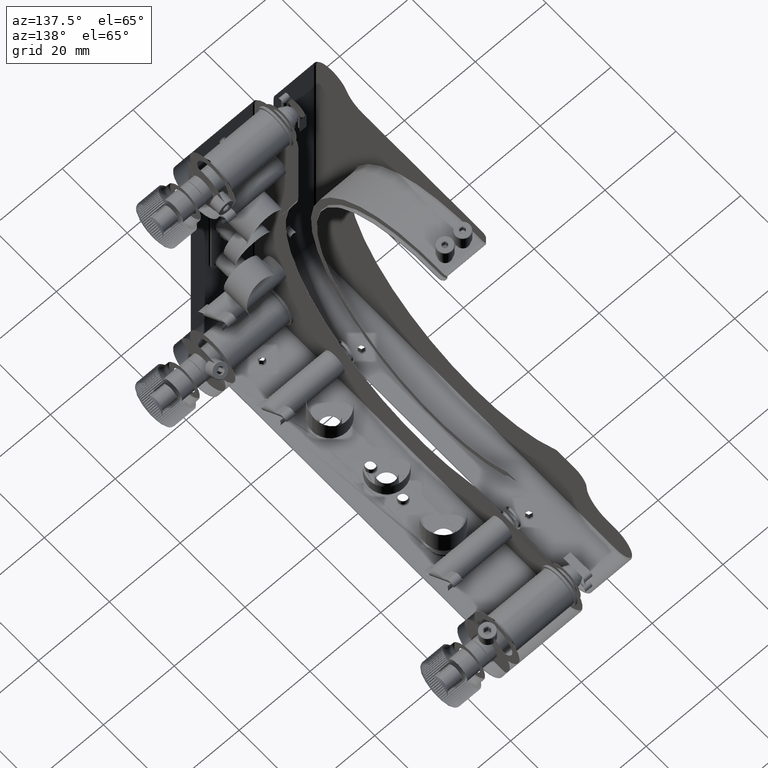
[diagram: clean part render]
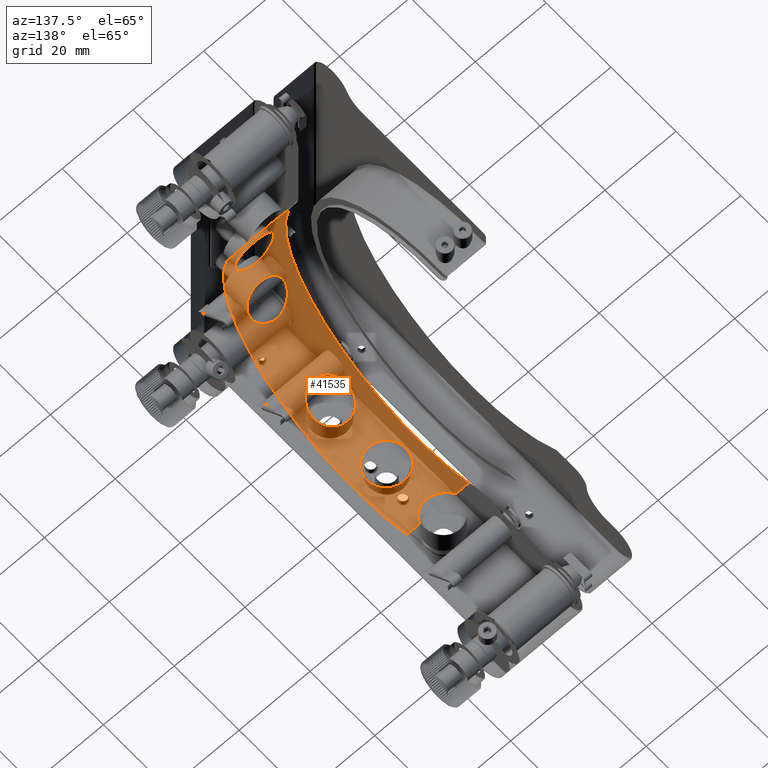
[diagram: same view with one face highlighted and labeled with its STEP entity id]
A machine part, auxiliary view. The second image highlights one B-rep face of the part: STEP entity #41535.
In plain terms, the highlighted cylindrical surface (partial cylindrical patch) has radius 40.75 mm, axis along (1, 0, 0).
Its self-contained STEP definition (entity closure, byte-faithful):
#3 = CARTESIAN_POINT ( 'NONE',  ( 1.930897542324980565, -38.79155880988962224, 12.48142907211062536 ) ) ;
#55 = CARTESIAN_POINT ( 'NONE',  ( 3.339438830450079720, 4.331555835994589820, -40.51960832178558292 ) ) ;
#132 = CARTESIAN_POINT ( 'NONE',  ( 4.614821647508463798, 14.78108813073963823, -37.97769513099697747 ) ) ;
#158 = CARTESIAN_POINT ( 'NONE',  ( 0.006123873095216170181, -40.38615388331849942, -5.433329965400402806 ) ) ;
#271 = CARTESIAN_POINT ( 'NONE',  ( -2.196415316527017936, -38.75539192368719910, 12.59366841985817942 ) ) ;
#323 = CARTESIAN_POINT ( 'NONE',  ( -1.241638347569308687, 5.296042663827035923, -40.40440117247214857 ) ) ;
#537 = CARTESIAN_POINT ( 'NONE',  ( -1.938796018661389509, -38.79057387053479999, 12.48449408876467182 ) ) ;
#672 = CARTESIAN_POINT ( 'NONE',  ( -1.395904647949272714, 12.30467445785584246, -38.84798698863874478 ) ) ;
#872 = CARTESIAN_POINT ( 'NONE',  ( -0.3583316744100871198, 5.433242218426096670, -40.38616568831872655 ) ) ;
#973 = CARTESIAN_POINT ( 'NONE',  ( -5.463039051178869343, -40.74508808486818623, -0.7230385806711530083 ) ) ;
#1408 = CARTESIAN_POINT ( 'NONE',  ( -4.121890411068113380, 3.601718521415357976, -40.59075216363608263 ) ) ;
#1585 = VERTEX_POINT ( 'NONE', #46623 ) ;
#1694 = CARTESIAN_POINT ( 'NONE',  ( -5.499998297477961096, -3.826998617230967584E-13, -40.75000000000000000 ) ) ;
#1723 = EDGE_LOOP ( 'NONE', ( #22780, #33017, #52060 ) ) ;
#1779 = CARTESIAN_POINT ( 'NONE',  ( 4.000722858813950289, -40.57888546541018115, 3.732581761779501850 ) ) ;
#2050 = CARTESIAN_POINT ( 'NONE',  ( -3.629126358851015421, -40.54419919650319315, 4.098008309915936564 ) ) ;
#2095 = CARTESIAN_POINT ( 'NONE',  ( -2.456502405976780157, -34.33236793493833261, -21.95174824899309129 ) ) ;
#2264 = ORIENTED_EDGE ( 'NONE', *, *, #30076, .T. ) ;
#2310 = CARTESIAN_POINT ( 'NONE',  ( -1.377311732215876106, -22.36281105411774561, -34.06568695109816503 ) ) ;
#2367 = CARTESIAN_POINT ( 'NONE',  ( -4.241903772861166821, -35.25976797914545813, -20.43062876499849523 ) ) ;
#2577 = CARTESIAN_POINT ( 'NONE',  ( 2.696154630790986939, -12.84261495296546407, -38.67394899576145662 ) ) ;
#2581 = CARTESIAN_POINT ( 'NONE',  ( 1.775557841394569403, -40.42291878982166509, -5.154473764669673663 ) ) ;
#2633 = CARTESIAN_POINT ( 'NONE',  ( 5.205741329893924352, -36.48463985630233708, -18.15379854000222082 ) ) ;
#2842 = CARTESIAN_POINT ( 'NONE',  ( -3.850394377802632828, -20.88564911169115490, -34.99100849808924352 ) ) ;
#2846 = CARTESIAN_POINT ( 'NONE',  ( 2.431487199460516724, -40.45721956630710991, -4.876779408126423299 ) ) ;
#2897 = CARTESIAN_POINT ( 'NONE',  ( 2.206056306756949414, -34.25972767963434507, -22.06445098705114916 ) ) ;
#3102 = CARTESIAN_POINT ( 'NONE',  ( -3.242500596238207411, -21.44832223115795244, -34.64942585980369927 ) ) ;
#3107 = CARTESIAN_POINT ( 'NONE',  ( 5.463039320360151940, -40.74508783613448770, 0.7230734162997934922 ) ) ;
#3159 = CARTESIAN_POINT ( 'NONE',  ( 4.680216337552370653, -37.91939278581921258, -14.92584298432247536 ) ) ;
#3369 = CARTESIAN_POINT ( 'NONE',  ( 0.2277920263223809916, -22.53961391077723064, -33.94890732302209102 ) ) ;
#3500 = CARTESIAN_POINT ( 'NONE',  ( -5.213111478127919085, -1.767983061123587385, -40.71295341165660631 ) ) ;
#3602 = CARTESIAN_POINT ( 'NONE',  ( 4.926787635636562968, 2.421736151843803420, -40.67828192795841602 ) ) ;
#3805 = CARTESIAN_POINT ( 'NONE',  ( 0.2797249183375758452, -38.90423023780286371, 12.12531936271253308 ) ) ;
#3942 = CARTESIAN_POINT ( 'NONE',  ( -4.995400562359823660, -36.05198119309647353, -18.99822215507832368 ) ) ;
#4027 = CARTESIAN_POINT ( 'NONE',  ( 0.8925483972004268907, -5.364198963368748352, -40.39540884763528794 ) ) ;
#4076 = CARTESIAN_POINT ( 'NONE',  ( -3.584629274975733360, -38.44443355499674908, 13.51411000818829145 ) ) ;
#4080 = VERTEX_POINT ( 'NONE', #47946 ) ;
#4125 = CARTESIAN_POINT ( 'NONE',  ( 5.500000656810635213, 0.3614219306665636400, -40.75000000000000711 ) ) ;
#4288 = EDGE_CURVE ( 'NONE', #17514, #41856, #12359, .T. ) ;
#4401 = CARTESIAN_POINT ( 'NONE',  ( -4.763334729731109718, 2.739575994951924276, -40.65888489046599830 ) ) ;
#4475 = CARTESIAN_POINT ( 'NONE',  ( -4.831024549768033083, 15.26249608576024386, -37.78472486095368055 ) ) ;
#4555 = CARTESIAN_POINT ( 'NONE',  ( 4.843472721472535270, -15.28882858863674343, -37.77357166424441459 ) ) ;
#4561 = CARTESIAN_POINT ( 'NONE',  ( 0.3595943720963981627, -5.424590790737092050, -40.38733241164318599 ) ) ;
#4778 = CARTESIAN_POINT ( 'NONE',  ( -5.011721531787838302, 15.76172518916092713, -37.57832512315272311 ) ) ;
#4994 = CARTESIAN_POINT ( 'NONE',  ( 5.011721531787839190, 15.76172518916092713, -37.57832512315272311 ) ) ;
#5034 = CARTESIAN_POINT ( 'NONE',  ( -3.341468954278050241, -40.51974638939110207, -4.330364573712174092 ) ) ;
#5038 = VERTEX_POINT ( 'NONE', #42139 ) ;
#5104 = CARTESIAN_POINT ( 'NONE',  ( 0.1785928338842767693, -5.433369985101750288, -40.38614849928588058 ) ) ;
#5151 = EDGE_CURVE ( 'NONE', #4080, #27292, #16479, .T. ) ;
#5303 = CARTESIAN_POINT ( 'NONE',  ( -4.000820371889020066, -40.57889467405702533, -3.732481677172799550 ) ) ;
#5306 = ORIENTED_EDGE ( 'NONE', *, *, #11054, .T. ) ;
#5307 = VERTEX_POINT ( 'NONE', #158 ) ;
#5562 = CARTESIAN_POINT ( 'NONE',  ( -5.218926350592871799, -40.71367826604164719, 1.751930019738067834 ) ) ;
#5835 = CARTESIAN_POINT ( 'NONE',  ( 0.006123873095216264724, -40.38615388331849942, -5.433329965400402806 ) ) ;
#6113 = CARTESIAN_POINT ( 'NONE',  ( -5.500314324973166080, -40.75004152345506014, 0.1697985289982003876 ) ) ;
#6157 = CARTESIAN_POINT ( 'NONE',  ( -1.469225657169255017, -34.08245734878160960, -22.33725395065035713 ) ) ;
#6214 = DIRECTION ( 'NONE',  ( 1.000000000000000000, 0.000000000000000000, 0.000000000000000000 ) ) ;
#6421 = CARTESIAN_POINT ( 'NONE',  ( 0.3149861472409103413, -33.94572647338952720, -22.54440438091026522 ) ) ;
#6544 = CARTESIAN_POINT ( 'NONE',  ( -5.499996602745524932, 0.000000000000000000, 0.000000000000000000 ) ) ;
#6639 = CARTESIAN_POINT ( 'NONE',  ( -1.480561840863057421, -12.31818982271674479, -38.84367554310399129 ) ) ;
#6694 = CARTESIAN_POINT ( 'NONE',  ( -4.253696983977738988, -38.18033209252557469, -14.24504721001471630 ) ) ;
#6902 = CARTESIAN_POINT ( 'NONE',  ( -3.635837687273550944, -13.54867592981782565, -38.43266084001547966 ) ) ;
#6908 = CARTESIAN_POINT ( 'NONE',  ( 3.629013672097569199, -40.54418884936116285, -4.098112353221560866 ) ) ;
#6963 = CARTESIAN_POINT ( 'NONE',  ( -2.696154630790662310, -38.67394899576130030, -12.84261495296588329 ) ) ;
#7071 = CARTESIAN_POINT ( 'NONE',  ( -8.749999999999987566, 0.000000000000000000, 0.000000000000000000 ) ) ;
#7166 = CARTESIAN_POINT ( 'NONE',  ( 1.717025850105045937, -12.40234493135632299, -38.81684397214100812 ) ) ;
#7224 = CARTESIAN_POINT ( 'NONE',  ( -4.039596001790020097, -38.27985037995065198, -13.97447870109688495 ) ) ;
#7428 = CARTESIAN_POINT ( 'NONE',  ( 1.371683080854103842, -12.29733202772297140, -38.85024016339947650 ) ) ;
#7432 = ORIENTED_EDGE ( 'NONE', *, *, #33906, .T. ) ;
#7462 = CARTESIAN_POINT ( 'NONE',  ( 5.011721531787826756, -37.57832512315272311, 15.76172518916094134 ) ) ;
#7479 = VECTOR ( 'NONE', #11718, 1000.000000000000000 ) ;
#7640 = LINE ( 'NONE', #49306, #7479 ) ;
#7668 = CARTESIAN_POINT ( 'NONE',  ( 5.319928757752005133, 1.424580756677927829, -40.72660235774582560 ) ) ;
#8004 = CARTESIAN_POINT ( 'NONE',  ( 3.967156427153303522, 13.90530133532940305, -38.30467641752975538 ) ) ;
#8133 = CARTESIAN_POINT ( 'NONE',  ( 0.5662669804062991918, -38.89709466596625731, 12.14828131422318691 ) ) ;
#8216 = CIRCLE ( 'NONE', #14292, 40.75000000000000000 ) ;
#8262 = CARTESIAN_POINT ( 'NONE',  ( 1.124839795127098085, 12.23844421147758510, -38.86882048262084766 ) ) ;
#8621 = CARTESIAN_POINT ( 'NONE',  ( 5.261001348601960892, -17.39485508263600266, -36.85080076001189298 ) ) ;
#8627 = CARTESIAN_POINT ( 'NONE',  ( 1.761236579560047755, -5.159529825564074024, -40.42227644108631068 ) ) ;
#8679 = CARTESIAN_POINT ( 'NONE',  ( 3.580623310212754262, -38.44574904499517487, 13.51037274324250070 ) ) ;
#8728 = CARTESIAN_POINT ( 'NONE',  ( -4.000726051704313946, 3.732585665438623135, -40.57888533190947555 ) ) ;
#8804 = CARTESIAN_POINT ( 'NONE',  ( -3.580623310212589505, 13.51037274324234794, -38.44574904499525303 ) ) ;
#8888 = CARTESIAN_POINT ( 'NONE',  ( 4.533334339831691651, -14.68065271886060685, -38.01401179730947177 ) ) ;
#9070 = CARTESIAN_POINT ( 'NONE',  ( 4.144096366179196522, 14.11745894000130441, -38.22715921338239298 ) ) ;
#9094 = CARTESIAN_POINT ( 'NONE',  ( -5.456141163097250057, -40.74424153513099611, 0.7078987838410566447 ) ) ;
#9273 = CARTESIAN_POINT ( 'NONE',  ( -1.928958507810110357, 5.091256213105920914, -40.43075774542476353 ) ) ;
#9368 = CARTESIAN_POINT ( 'NONE',  ( -2.739424624468616010, -40.47563517350196349, -4.724919269512259490 ) ) ;
#9638 = CARTESIAN_POINT ( 'NONE',  ( -0.3677366741814773743, -40.38621032067162986, 5.432910464319828492 ) ) ;
#9742 = LINE ( 'NONE', #21948, #53336 ) ;
#9905 = CARTESIAN_POINT ( 'NONE',  ( 4.351315916142229234, -40.61411531252756646, 3.327919390608630845 ) ) ;
#9953 = CARTESIAN_POINT ( 'NONE',  ( -4.619548268556921577, -37.95561411499282656, -14.83106584895282154 ) ) ;
#10167 = CARTESIAN_POINT ( 'NONE',  ( -9.000000000000001776, 15.76172518916092358, -37.57832512315271600 ) ) ;
#10232 = CARTESIAN_POINT ( 'NONE',  ( -0.7709097162624632960, -33.98292821134760544, -22.48830090499527046 ) ) ;
#10505 = CARTESIAN_POINT ( 'NONE',  ( -1.808036624273045012, -34.15427825385300764, -22.22728255873273895 ) ) ;
#10639 = AXIS2_PLACEMENT_3D ( 'NONE', #7071, #24398, #32511 ) ;
#10714 = CARTESIAN_POINT ( 'NONE',  ( 2.756598680347667862, -21.78207264107658858, -34.44063816294812597 ) ) ;
#10718 = CARTESIAN_POINT ( 'NONE',  ( 5.499340462843626653, -40.74991295283649606, 0.3686911672014360764 ) ) ;
#10723 = CARTESIAN_POINT ( 'NONE',  ( 5.261001348601959116, -17.39485508263599911, -36.85080076001188587 ) ) ;
#10766 = CARTESIAN_POINT ( 'NONE',  ( 1.377311732215388496, -34.06568695109836398, -22.36281105411744718 ) ) ;
#10982 = CARTESIAN_POINT ( 'NONE',  ( -4.703133273776444412, -19.68865675327059250, -35.67957317613453228 ) ) ;
#10986 = CARTESIAN_POINT ( 'NONE',  ( 5.212209771667665414, -40.71283969846270168, 1.770643016059616270 ) ) ;
#11038 = CARTESIAN_POINT ( 'NONE',  ( 5.247816183913206700, -36.64448800743087276, -17.82909368240089520 ) ) ;
#11054 = EDGE_CURVE ( 'NONE', #1585, #15980, #8216, .T. ) ;
#11118 = CARTESIAN_POINT ( 'NONE',  ( -2.425893985234404582, -4.889052678244928174, -40.45587802180187253 ) ) ;
#11252 = CARTESIAN_POINT ( 'NONE',  ( -1.717844299436062316, -22.25902489347667768, -34.13359278605136637 ) ) ;
#11256 = CARTESIAN_POINT ( 'NONE',  ( 2.269786482426534135, -40.44802549248859691, -4.952206536362248279 ) ) ;
#11312 = CARTESIAN_POINT ( 'NONE',  ( 4.827319914946170520, -37.79802224291981361, -15.23119640393612251 ) ) ;
#11515 = CARTESIAN_POINT ( 'NONE',  ( -4.109683434396426804, -14.05897116549785686, -38.24893944232420040 ) ) ;
#11519 = CARTESIAN_POINT ( 'NONE',  ( 5.429640831829321002, -40.74077617593476219, -0.8844050068614875970 ) ) ;
#11718 = DIRECTION ( 'NONE',  ( -1.000000000000000000, -0.000000000000000000, -0.000000000000000000 ) ) ;
#11773 = CARTESIAN_POINT ( 'NONE',  ( -3.499654124198489757, -21.23546148511702469, -34.78062296213604299 ) ) ;
#11831 = CARTESIAN_POINT ( 'NONE',  ( -5.256921231683577389, -36.69531117311947810, -17.72425798709299372 ) ) ;
#11895 = CARTESIAN_POINT ( 'NONE',  ( 8.750000000000000000, 0.000000000000000000, 0.000000000000000000 ) ) ;
#12006 = CARTESIAN_POINT ( 'NONE',  ( 8.750000000000000000, -37.57832512315271600, 15.76172518916093068 ) ) ;
#12082 = CARTESIAN_POINT ( 'NONE',  ( -4.138384168135939234, 14.11039175501841569, -38.22975776204179255 ) ) ;
#12220 = CARTESIAN_POINT ( 'NONE',  ( 2.193948511226372577, -38.75575553267724871, 12.59254794471602956 ) ) ;
#12275 = CARTESIAN_POINT ( 'NONE',  ( 3.617751395522072144, 4.108109355585617628, -40.54318872123957362 ) ) ;
#12345 = CARTESIAN_POINT ( 'NONE',  ( -3.369227464967950780, 13.32610340693979722, -38.50983938671728879 ) ) ;
#12359 = CIRCLE ( 'NONE', #10639, 40.75000000000000000 ) ;
#12524 = CARTESIAN_POINT ( 'NONE',  ( 2.257980537961369993, 4.957509279082303877, -40.44737590031423480 ) ) ;
#12606 = CARTESIAN_POINT ( 'NONE',  ( -5.261001348601495486, -36.85080076001185034, -17.39485508263608793 ) ) ;
#12870 = CARTESIAN_POINT ( 'NONE',  ( -3.964526606942992082, 13.90225871100374810, -38.30578277524712405 ) ) ;
#12956 = CARTESIAN_POINT ( 'NONE',  ( 5.269161582437790869, -16.73604927372215911, -37.16177993379661615 ) ) ;
#12961 = CARTESIAN_POINT ( 'NONE',  ( -1.764370457714002915, -5.158295482916063435, -40.42243053450017953 ) ) ;
#13139 = CARTESIAN_POINT ( 'NONE',  ( 0.2872092080756378785, 12.12571872543567864, -38.90410576578472046 ) ) ;
#13422 = CARTESIAN_POINT ( 'NONE',  ( -1.416604030705982398, -40.40889437748592172, -5.261991032751218711 ) ) ;
#13494 = CARTESIAN_POINT ( 'NONE',  ( 2.743166665434368490, -4.722498537363804871, -40.47590699085692023 ) ) ;
#13553 = ORIENTED_EDGE ( 'NONE', *, *, #33558, .T. ) ;
#13576 = ORIENTED_EDGE ( 'NONE', *, *, #4288, .F. ) ;
#13602 = CARTESIAN_POINT ( 'NONE',  ( 0.7179445416572157734, 5.398397788207046410, -40.39089730829572744 ) ) ;
#13698 = CARTESIAN_POINT ( 'NONE',  ( -4.121752881803235624, -40.59073942322513773, -3.601845174273287320 ) ) ;
#13877 = CARTESIAN_POINT ( 'NONE',  ( -4.933735927817450850, 2.427550588920688313, -40.67896176066003733 ) ) ;
#13979 = CARTESIAN_POINT ( 'NONE',  ( 4.763582895831884656, -40.65891045771595458, 2.739297094972142688 ) ) ;
#14246 = CARTESIAN_POINT ( 'NONE',  ( -2.431641659203667150, -40.45722875026937260, 4.876703039565683184 ) ) ;
#14292 = AXIS2_PLACEMENT_3D ( 'NONE', #11895, #28412, #47901 ) ;
#14525 = CARTESIAN_POINT ( 'NONE',  ( 3.352568481008634471, -40.52065799966011639, -4.321813870385293299 ) ) ;
#14572 = CARTESIAN_POINT ( 'NONE',  ( -3.318245401906849246, -34.68624177405235542, -21.38880261268124627 ) ) ;
#14602 = B_SPLINE_CURVE_WITH_KNOTS ( 'NONE', 3,
 ( #5835, #46180, #42671, #13422, #29950, #30494, #9368, #5034, #42135, #5303, #13698, #38610, #18042, #30760, #42938, #25890, #18581, #973, #34280, #6113, #22650, #9094, #42404, #39156, #5562, #26429, #21840, #50774, #38348, #2050, #30227, #25624, #51320, #14246, #51053, #22377, #35098, #46719, #9638, #34559, #50496, #21573, #34015, #38087, #46989, #26163, #38888, #1779, #17500, #9905, #22099, #13979, #36440, #10986, #31561, #3107, #10718, #48589, #19118, #31300, #11519, #23451, #36174, #44010, #47792, #32102, #39692, #6908, #14525, #40218, #15057, #2846, #11256, #2581, #35644, #19652, #31033, #35903 ),
 .UNSPECIFIED., .T., .F.,
 ( 4, 2, 2, 2, 2, 2, 2, 2, 2, 2, 2, 2, 2, 2, 2, 2, 2, 2, 2, 2, 2, 2, 2, 2, 2, 2, 2, 2, 2, 2, 2, 2, 2, 2, 2, 2, 2, 2, 4 ),
 ( 0.000000000000000000, 0.001074860242416511309, 0.002149720484833022617, 0.003224580727249533492, 0.004299440969666045234, 0.004836871090874301539, 0.005374301212082558711, 0.006449161454499071321, 0.007524021696915584798, 0.008598881939332097407, 0.009136312060540356314, 0.009673742181748613486, 0.01074860242416512783, 0.01182346266658164391, 0.01289832290899815825, 0.01397318315141467260, 0.01451061327262292804, 0.01504804339383118347, 0.01612290363624769782, 0.01719776387866421216, 0.01827262412108072304, 0.01934748436349723391, 0.02042234460591374479, 0.02149720484833025566, 0.02203463496953851283, 0.02257206509074677001, 0.02364692533316328088, 0.02472178557557978829, 0.02579664581799629222, 0.02633407593920454592, 0.02687150606041280310, 0.02794636630282931050, 0.02902122654524581791, 0.03009608678766232531, 0.03117094703007883272, 0.03170837715128708989, 0.03224580727249534706, 0.03332066751491185447, 0.03439552775732836881 ),
 .UNSPECIFIED. ) ;
#14791 = CARTESIAN_POINT ( 'NONE',  ( -0.3149861472412423535, -22.54440438091073773, -33.94572647338915061 ) ) ;
#14845 = CARTESIAN_POINT ( 'NONE',  ( 5.248963195070421861, -37.10755870821567726, -16.84395245975408173 ) ) ;
#15052 = CARTESIAN_POINT ( 'NONE',  ( -0.6722249016114627551, -22.51097255405258579, -33.96800736007805455 ) ) ;
#15057 = CARTESIAN_POINT ( 'NONE',  ( 2.748664650791895259, -40.47703122138305787, -4.709515467125152455 ) ) ;
#15104 = CARTESIAN_POINT ( 'NONE',  ( 3.635837687273444363, -38.43266084001527361, -13.54867592981837809 ) ) ;
#15174 = CARTESIAN_POINT ( 'NONE',  ( -3.189964028402764828, -4.429658049590132762, -40.50864559972226431 ) ) ;
#15312 = CARTESIAN_POINT ( 'NONE',  ( 4.241903772861450150, -20.43062876499887537, -35.25976797914523786 ) ) ;
#15373 = CARTESIAN_POINT ( 'NONE',  ( 1.480561840862956835, -38.84367554310386339, -12.31818982271719598 ) ) ;
#15589 = CARTESIAN_POINT ( 'NONE',  ( 0.6687740283198418956, -12.15036106530243565, -38.89648392008152200 ) ) ;
#15647 = CARTESIAN_POINT ( 'NONE',  ( -0.4110952138729713767, -33.95623809182475128, -22.52858136646210951 ) ) ;
#15846 = CARTESIAN_POINT ( 'NONE',  ( 1.469225657169102917, -22.33725395065080122, -34.08245734878131827 ) ) ;
#15905 = CARTESIAN_POINT ( 'NONE',  ( -4.598969839645304702, -35.57155766007274877, -19.88280954272997647 ) ) ;
#15976 = CARTESIAN_POINT ( 'NONE',  ( -4.359028773501672838, -3.332681002284666683, -40.61459026927117577 ) ) ;
#15980 = VERTEX_POINT ( 'NONE', #12006 ) ;
#16021 = CARTESIAN_POINT ( 'NONE',  ( 1.122968504476722140, -38.86894683602120892, 12.23804249874962835 ) ) ;
#16155 = CIRCLE ( 'NONE', #49829, 40.75000000000000000 ) ;
#16292 = CARTESIAN_POINT ( 'NONE',  ( -4.850394414881195715, -37.79020639065076637, 15.25656835753295404 ) ) ;
#16418 = CARTESIAN_POINT ( 'NONE',  ( -1.930897542324826022, 12.48142907211046548, -38.79155880988969329 ) ) ;
#16479 = B_SPLINE_CURVE_WITH_KNOTS ( 'NONE', 3,
 ( #33107, #4125, #20666, #7668, #24213, #40713, #3602, #36662, #53139, #37180, #49336, #12275, #55, #16611, #49588, #23686, #12524, #29036, #45537, #13602, #38514, #872, #42577, #323, #45813, #21745, #9273, #25526, #33371, #25263, #17407, #8728, #1408, #33920, #24988, #4401, #13877, #29311, #41497, #50405, #30132, #20936 ),
 .UNSPECIFIED., .F., .F.,
 ( 4, 2, 2, 2, 2, 2, 2, 2, 2, 2, 2, 2, 2, 2, 2, 2, 2, 2, 2, 2, 4 ),
 ( 4.914551236149632764E-18, 0.001081859580082004252, 0.002163719160164002866, 0.002704648950205002823, 0.003245578740246003215, 0.004327438320328003130, 0.005409297900410002177, 0.005950227690451002568, 0.006491157480492001225, 0.007573017060574002007, 0.008654876640656001055, 0.009736736220738000103, 0.01027766601077900049, 0.01081859580081999915, 0.01190045538090199993, 0.01298231496098399725, 0.01352324475102499764, 0.01406417454106599629, 0.01514603412114799881, 0.01622789370122999439, 0.01730975328131199517 ),
 .UNSPECIFIED. ) ;
#16562 = CARTESIAN_POINT ( 'NONE',  ( -1.403209007920019236, -38.84736416280526328, 12.30664501235861152 ) ) ;
#16611 = CARTESIAN_POINT ( 'NONE',  ( 2.893236182564590919, 4.624186633567585858, -40.48689950596054388 ) ) ;
#16687 = CARTESIAN_POINT ( 'NONE',  ( -5.091336230884726533, -36.21578143336105171, -18.68439383591676872 ) ) ;
#16735 = EDGE_CURVE ( 'NONE', #41195, #23528, #41014, .T. ) ;
#16768 = CARTESIAN_POINT ( 'NONE',  ( 4.761806732925205843, -2.742115188085471722, -40.65871131883753264 ) ) ;
#16814 = CARTESIAN_POINT ( 'NONE',  ( -2.931444422004205741, -38.62066899581582646, 13.00142764817423924 ) ) ;
#17216 = CARTESIAN_POINT ( 'NONE',  ( -2.689407202584908507, 12.84993704586428009, -38.67117749132991378 ) ) ;
#17407 = CARTESIAN_POINT ( 'NONE',  ( -3.619774058510268677, 4.105968150468766176, -40.54338475840064149 ) ) ;
#17500 = CARTESIAN_POINT ( 'NONE',  ( 4.121650934172808256, -40.59072993898237058, 3.601951292046362774 ) ) ;
#17514 = VERTEX_POINT ( 'NONE', #22819 ) ;
#17669 = DIRECTION ( 'NONE',  ( -1.000000000000000000, -0.000000000000000000, -0.000000000000000000 ) ) ;
#17973 = FACE_BOUND ( 'NONE', #32691, .T. ) ;
#18042 = CARTESIAN_POINT ( 'NONE',  ( -4.460684768055046767, -40.62572977583717915, -3.183494092382266327 ) ) ;
#18090 = CARTESIAN_POINT ( 'NONE',  ( -5.261001348601495486, -36.85080076001185034, -17.39485508263608793 ) ) ;
#18526 = VERTEX_POINT ( 'NONE', #1694 ) ;
#18581 = CARTESIAN_POINT ( 'NONE',  ( -5.320368056317815508, -40.72665881831637336, -1.422761163815011942 ) ) ;
#18628 = CARTESIAN_POINT ( 'NONE',  ( -2.756598680347605690, -34.44063816294841018, -21.78207264107611962 ) ) ;
#18698 = EDGE_CURVE ( 'NONE', #36702, #48994, #34400, .T. ) ;
#18846 = CARTESIAN_POINT ( 'NONE',  ( 1.197250167810901100, -12.25390032225131165, -38.86393875732265002 ) ) ;
#18905 = CARTESIAN_POINT ( 'NONE',  ( -0.6687740283197041169, -38.89648392008137279, -12.15036106530296145 ) ) ;
#19114 = CARTESIAN_POINT ( 'NONE',  ( -3.371371562498864272, -13.31486612383551993, -38.51395875749832243 ) ) ;
#19118 = CARTESIAN_POINT ( 'NONE',  ( 5.491511865937709125, -40.74887913774765025, -0.3509951321046544392 ) ) ;
#19163 = AXIS2_PLACEMENT_3D ( 'NONE', #26094, #42061, #21230 ) ;
#19170 = CARTESIAN_POINT ( 'NONE',  ( -3.281469672307180563, -38.53877709199544199, -13.24272441797293354 ) ) ;
#19375 = CARTESIAN_POINT ( 'NONE',  ( -5.061936500146739348, -18.78872931715076078, -36.16176153787186820 ) ) ;
#19430 = CARTESIAN_POINT ( 'NONE',  ( -0.2277920263227289632, -33.94890732302235392, -22.53961391077685761 ) ) ;
#19603 = B_SPLINE_CURVE_WITH_KNOTS ( 'NONE', 3,
 ( #8621, #12956, #30016, #4555, #21095, #45981, #8888, #33815, #50298, #36169, #35898, #2577, #52381, #43736, #7166, #7428, #18846, #15589, #19647, #44530, #48832, #6639, #27228, #23711, #35640, #19114, #6902, #11515, #28027, #40214, #39960, #52652, #27765, #23171, #39417, #48582, #19913, #19375, #51855, #10982, #28293, #23445, #23975, #44793, #2842, #11773, #3102, #32097, #31557, #22904, #40482, #27498, #11252, #2310, #35369, #15052, #14791, #3369, #31296, #36435, #52916, #15846, #32350, #47787, #52115, #10714, #39686, #48044, #44006, #15312, #31828, #48320, #44272, #36686, #20963, #49363, #45056 ),
 .UNSPECIFIED., .T., .F.,
 ( 4, 2, 2, 2, 2, 2, 2, 2, 2, 2, 2, 2, 2, 2, 2, 2, 2, 2, 2, 2, 2, 2, 2, 2, 2, 2, 2, 2, 2, 2, 1, 2, 2, 2, 2, 2, 2, 2, 4 ),
 ( 0.000000000000000000, 0.002177300930612093965, 0.002721626163265121034, 0.003265951395918148537, 0.004354601861224193134, 0.005443252326530237731, 0.006531902791836283195, 0.007076228024489307662, 0.007620553257142330394, 0.008709203722448377594, 0.009797854187754424793, 0.01088650465306047026, 0.01197515511836651746, 0.01306380558367256466, 0.01415245604897861186, 0.01524110651428465732, 0.01632975697959070452, 0.01741840744489675172, 0.01850705791020279892, 0.01959570837550884612, 0.02068435884081489332, 0.02122868407346791692, 0.02177300930612094051, 0.02286165977142697731, 0.02340598500408000091, 0.02395031023673302450, 0.02449463546938604810, 0.02503896070203907170, 0.02612761116734512237, 0.02667193639999814597, 0.02721626163265116957, 0.02776058686530419317, 0.02830491209795721677, 0.02939356256326326744, 0.03048221302856931464, 0.03157086349387536878, 0.03265951395918141598, 0.03374816442448747011, 0.03483681488979351731 ),
 .UNSPECIFIED. ) ;
#19647 = CARTESIAN_POINT ( 'NONE',  ( 0.3072807010815132855, -12.11676009649300489, -38.90689708913046019 ) ) ;
#19652 = CARTESIAN_POINT ( 'NONE',  ( 0.7256911202392203331, -40.39100285897499276, -5.397627205203082923 ) ) ;
#19704 = CARTESIAN_POINT ( 'NONE',  ( 4.271502345760787023, -35.28946463742985884, -20.37745033883944146 ) ) ;
#19913 = CARTESIAN_POINT ( 'NONE',  ( -5.205741329894443048, -18.15379854000197568, -36.48463985630241524 ) ) ;
#20045 = CARTESIAN_POINT ( 'NONE',  ( -4.935500413214938042, -2.423892563413497570, -40.67917261259341899 ) ) ;
#20666 = CARTESIAN_POINT ( 'NONE',  ( 5.463074552624623159, 0.7231979287483064622, -40.74509240011733624 ) ) ;
#20936 = CARTESIAN_POINT ( 'NONE',  ( -5.499996602745522267, 0.006038985377659317200, -40.74999955252338424 ) ) ;
#20963 = CARTESIAN_POINT ( 'NONE',  ( 5.221559233749591300, -18.04840650855258488, -36.53689122444139770 ) ) ;
#21095 = CARTESIAN_POINT ( 'NONE',  ( 4.774326642546486532, -15.13473251500882633, -37.83555244424678676 ) ) ;
#21101 = CARTESIAN_POINT ( 'NONE',  ( 5.500000000000041744, -4.987047574736496884E-15, -40.75000000000000000 ) ) ;
#21147 = CARTESIAN_POINT ( 'NONE',  ( 2.689407202585043066, -38.67117749132983562, 12.84993704586446484 ) ) ;
#21230 = DIRECTION ( 'NONE',  ( 0.000000000000000000, 0.000000000000000000, -1.000000000000000000 ) ) ;
#21282 = CARTESIAN_POINT ( 'NONE',  ( -4.931055082370356502, 15.50907030885118942, -37.68429782891042379 ) ) ;
#21373 = CARTESIAN_POINT ( 'NONE',  ( 4.359220331459719766, -3.332083880450631863, -40.61461828980960576 ) ) ;
#21573 = CARTESIAN_POINT ( 'NONE',  ( 1.416326855749925118, -40.40888426725656757, 5.262068322739398951 ) ) ;
#21646 = CARTESIAN_POINT ( 'NONE',  ( 0.7160690695509407400, -5.389995264112789286, -40.39196399815630656 ) ) ;
#21745 = CARTESIAN_POINT ( 'NONE',  ( -1.760792031494769150, 5.150415478049112927, -40.42324060822863174 ) ) ;
#21772 = FACE_OUTER_BOUND ( 'NONE', #30462, .T. ) ;
#21840 = CARTESIAN_POINT ( 'NONE',  ( -4.769807046616441504, -40.65963299660292307, 2.728399215063981309 ) ) ;
#21948 = CARTESIAN_POINT ( 'NONE',  ( -9.000000000000001776, 15.76172518916092358, -37.57832512315271600 ) ) ;
#22005 = LINE ( 'NONE', #43639, #51829 ) ;
#22099 = CARTESIAN_POINT ( 'NONE',  ( 4.460576716351265958, -40.62571702539202079, 3.183657993337826397 ) ) ;
#22377 = CARTESIAN_POINT ( 'NONE',  ( -1.775775033436534533, -40.42292833887381676, 5.154398954598318205 ) ) ;
#22650 = CARTESIAN_POINT ( 'NONE',  ( -5.491503208492173549, -40.74887846624742593, 0.3510594027447591636 ) ) ;
#22694 = CARTESIAN_POINT ( 'NONE',  ( -1.371683080853907111, -38.85024016339933439, -12.29733202772351852 ) ) ;
#22780 = ORIENTED_EDGE ( 'NONE', *, *, #50218, .T. ) ;
#22819 = CARTESIAN_POINT ( 'NONE',  ( -8.749999999999991118, 15.76172518916092713, -37.57832512315271600 ) ) ;
#22904 = CARTESIAN_POINT ( 'NONE',  ( -2.362990295922543282, -21.98953306638463090, -34.30790681367022188 ) ) ;
#22957 = CARTESIAN_POINT ( 'NONE',  ( -3.574238678063648145, -34.82131387496636421, -21.16875008053011697 ) ) ;
#23082 = DIRECTION ( 'NONE',  ( -1.000000000000000000, -0.000000000000000000, -0.000000000000000000 ) ) ;
#23171 = CARTESIAN_POINT ( 'NONE',  ( -5.248963195070825982, -16.84395245975369093, -37.10755870821584779 ) ) ;
#23229 = CARTESIAN_POINT ( 'NONE',  ( -1.888353664834478973, -38.79704726128782255, -12.46422690425788637 ) ) ;
#23445 = CARTESIAN_POINT ( 'NONE',  ( -4.271502345761306607, -20.37745033883937751, -35.28946463742988726 ) ) ;
#23451 = CARTESIAN_POINT ( 'NONE',  ( 5.324253570863390017, -40.72715657337236905, -1.408289736916966683 ) ) ;
#23502 = CARTESIAN_POINT ( 'NONE',  ( 3.850394377802039525, -34.99100849808932168, -20.88564911169103055 ) ) ;
#23528 = VERTEX_POINT ( 'NONE', #4994 ) ;
#23686 = CARTESIAN_POINT ( 'NONE',  ( 2.422275583964097034, 4.881247477834375736, -40.45668001381583423 ) ) ;
#23711 = CARTESIAN_POINT ( 'NONE',  ( -2.481671805438680156, -12.72270035840648461, -38.71328836154053477 ) ) ;
#23766 = CARTESIAN_POINT ( 'NONE',  ( 2.481671805438539824, -38.71328836154036424, -12.72270035840701752 ) ) ;
#23975 = CARTESIAN_POINT ( 'NONE',  ( -4.171819373329903158, -20.51009575408415841, -35.21249967570679473 ) ) ;
#24110 = CARTESIAN_POINT ( 'NONE',  ( -5.499999669557295690, -0.3614638442580203614, -40.75000000000002132 ) ) ;
#24164 = EDGE_CURVE ( 'NONE', #48994, #41856, #22005, .T. ) ;
#24213 = CARTESIAN_POINT ( 'NONE',  ( 5.214393086463344318, 1.764607821882091310, -40.71311198907199724 ) ) ;
#24373 = CARTESIAN_POINT ( 'NONE',  ( -4.129520462226500932, -3.606110815744477005, -40.59089913444670117 ) ) ;
#24398 = DIRECTION ( 'NONE',  ( -1.000000000000000000, -0.000000000000000000, -0.000000000000000000 ) ) ;
#24549 = CARTESIAN_POINT ( 'NONE',  ( -5.221559233749148099, -36.53689122444135506, -18.04840650855256712 ) ) ;
#24624 = CARTESIAN_POINT ( 'NONE',  ( -0.7153802865514959919, -5.398694660555294789, -40.39085714834129703 ) ) ;
#24668 = CARTESIAN_POINT ( 'NONE',  ( -4.614821647508375868, -37.97769513099697747, 14.78108813073971461 ) ) ;
#24798 = CARTESIAN_POINT ( 'NONE',  ( 2.196415316527012163, 12.59366841985825936, -38.75539192368718489 ) ) ;
#24988 = CARTESIAN_POINT ( 'NONE',  ( -4.461362211534988909, 3.182547970356491618, -40.62580230233553635 ) ) ;
#25214 = CARTESIAN_POINT ( 'NONE',  ( 3.964526606943079567, -38.30578277524708142, 13.90225871100389021 ) ) ;
#25263 = CARTESIAN_POINT ( 'NONE',  ( -3.342690697744396644, 4.329443708506087951, -40.51984511762763219 ) ) ;
#25526 = CARTESIAN_POINT ( 'NONE',  ( -2.423371628772456265, 4.890181171809335758, -40.45573970271382791 ) ) ;
#25601 = CARTESIAN_POINT ( 'NONE',  ( 5.011721531787839190, 15.76172518916092713, -37.57832512315272311 ) ) ;
#25624 = CARTESIAN_POINT ( 'NONE',  ( -2.904582413779770445, -40.48769011990329147, 4.617280113840529943 ) ) ;
#25687 = CARTESIAN_POINT ( 'NONE',  ( -8.749999999999984013, -37.57832512315271600, 15.76172518916092713 ) ) ;
#25890 = CARTESIAN_POINT ( 'NONE',  ( -5.212252083103284583, -40.71284498756631365, -1.770525183654469314 ) ) ;
#26094 = CARTESIAN_POINT ( 'NONE',  ( -9.000000000000001776, 0.000000000000000000, 0.000000000000000000 ) ) ;
#26163 = CARTESIAN_POINT ( 'NONE',  ( 3.341228778345521455, -40.51972701682781519, 4.330543734101898856 ) ) ;
#26429 = CARTESIAN_POINT ( 'NONE',  ( -4.940013229657256311, -40.67970509892841591, 2.415460579067447267 ) ) ;
#26684 = LINE ( 'NONE', #10167, #26689 ) ;
#26689 = VECTOR ( 'NONE', #35351, 1000.000000000000000 ) ;
#26750 = CARTESIAN_POINT ( 'NONE',  ( 2.668413066805596756, -34.41289398124776255, -21.82486568683770756 ) ) ;
#27023 = CARTESIAN_POINT ( 'NONE',  ( -2.384608461660514322, -38.72969137880846802, -12.67260114435701546 ) ) ;
#27228 = CARTESIAN_POINT ( 'NONE',  ( -1.828657110750430581, -12.43231799644179958, -38.80751563046696617 ) ) ;
#27280 = CARTESIAN_POINT ( 'NONE',  ( -1.197250167810745669, -38.86393875732248659, -12.25390032225171311 ) ) ;
#27292 = VERTEX_POINT ( 'NONE', #45340 ) ;
#27498 = CARTESIAN_POINT ( 'NONE',  ( -1.883482332993451358, -22.19919530070329472, -34.17257183830210465 ) ) ;
#27537 = B_SPLINE_CURVE_WITH_KNOTS ( 'NONE', 3,
 ( #28161, #24110, #40611, #35772, #3500, #20045, #53046, #15976, #24373, #40869, #36815, #53305, #15174, #48180, #11118, #12961, #28936, #24624, #33821, #5104, #4561, #21646, #4027, #45712, #8627, #29755, #13494, #41665, #50565, #41924, #21373, #16768, #30023, #46246, #49750, #50029, #29484, #21101 ),
 .UNSPECIFIED., .F., .F.,
 ( 4, 2, 2, 2, 2, 2, 2, 2, 2, 2, 2, 2, 2, 2, 2, 2, 2, 2, 4 ),
 ( 2.251757338026126540E-10, 0.001074615421792986291, 0.002149230618410239053, 0.003223845815027491599, 0.004298461011644744145, 0.004835768609953368900, 0.005373076208261995390, 0.006447691404879242298, 0.007522306601496490074, 0.008596921798113738716, 0.009134229396422364339, 0.009671536994730986492, 0.01074615219134823774, 0.01182076738796548551, 0.01289538258458273329, 0.01396999778119998280, 0.01504461297781723057, 0.01611922817443448008, 0.01719384337105173133 ),
 .UNSPECIFIED. ) ;
#27557 = CARTESIAN_POINT ( 'NONE',  ( 4.321901997305735321, -38.14494637425622869, -14.33960264941131335 ) ) ;
#27674 = DIRECTION ( 'NONE',  ( 0.000000000000000000, 4.073497095191669359E-10, -1.000000000000000000 ) ) ;
#27765 = CARTESIAN_POINT ( 'NONE',  ( -5.144989956676566223, -16.19201272602637331, -37.39663583305762984 ) ) ;
#27826 = CARTESIAN_POINT ( 'NONE',  ( -3.555435091088909871, -38.45870198623330793, -13.47446628304492400 ) ) ;
#28027 = CARTESIAN_POINT ( 'NONE',  ( -4.321901997305833909, -14.33960264941066853, -38.14494637425640633 ) ) ;
#28161 = CARTESIAN_POINT ( 'NONE',  ( -5.499998297477961096, -3.826998617230967584E-13, -40.75000000000000000 ) ) ;
#28293 = CARTESIAN_POINT ( 'NONE',  ( -4.547592887428677066, -19.97160152924786303, -35.52175135308029041 ) ) ;
#28412 = DIRECTION ( 'NONE',  ( -1.000000000000000000, -0.000000000000000000, -0.000000000000000000 ) ) ;
#28475 = CARTESIAN_POINT ( 'NONE',  ( -4.144096366179232938, -38.22715921338242140, 14.11745894000133816 ) ) ;
#28602 = CARTESIAN_POINT ( 'NONE',  ( 1.403209007920115381, 12.30664501235866304, -38.84736416280525617 ) ) ;
#28733 = CARTESIAN_POINT ( 'NONE',  ( -0.2872092080755958565, -38.90410576578469204, 12.12571872543579588 ) ) ;
#28855 = CARTESIAN_POINT ( 'NONE',  ( 0.5681084350654296289, 12.14847888789040198, -38.89703308914621971 ) ) ;
#28936 = CARTESIAN_POINT ( 'NONE',  ( -1.415619601142955819, -5.262107365890914323, -40.40887861949966720 ) ) ;
#29036 = CARTESIAN_POINT ( 'NONE',  ( 1.760184631064124039, 5.159765628467945398, -40.42224363581662061 ) ) ;
#29116 = CARTESIAN_POINT ( 'NONE',  ( 1.938796018661484322, 12.48449408876460609, -38.79057387053484263 ) ) ;
#29157 = ORIENTED_EDGE ( 'NONE', *, *, #24164, .T. ) ;
#29311 = CARTESIAN_POINT ( 'NONE',  ( -5.212537875968584977, 1.769844943938785775, -40.71287978835967891 ) ) ;
#29386 = CARTESIAN_POINT ( 'NONE',  ( 4.850394414881185057, 15.25656835753294516, -37.79020639065078768 ) ) ;
#29484 = CARTESIAN_POINT ( 'NONE',  ( 5.499999343099497118, -0.3614714279542970976, -40.75000000000000000 ) ) ;
#29663 = CARTESIAN_POINT ( 'NONE',  ( 2.691742175554006966, 12.85131259869831766, -38.67072086111753038 ) ) ;
#29755 = CARTESIAN_POINT ( 'NONE',  ( 2.427941374295867760, -4.888260473090553226, -40.45597718814497057 ) ) ;
#29950 = CARTESIAN_POINT ( 'NONE',  ( -1.764131061428247271, -40.42242783290276265, -5.158304090181177415 ) ) ;
#30016 = CARTESIAN_POINT ( 'NONE',  ( 5.149675039096806906, -16.06989020029430648, -37.45366555004827092 ) ) ;
#30023 = CARTESIAN_POINT ( 'NONE',  ( 4.935881307690404896, -2.423135504026450171, -40.67921790191176967 ) ) ;
#30076 = EDGE_CURVE ( 'NONE', #5307, #5307, #14602, .T. ) ;
#30132 = CARTESIAN_POINT ( 'NONE',  ( -5.499590566917809120, 0.3674723295921720756, -40.74994598956130432 ) ) ;
#30190 = EDGE_LOOP ( 'NONE', ( #42071 ) ) ;
#30227 = CARTESIAN_POINT ( 'NONE',  ( -3.352700661790237735, -40.52066787969817341, 4.321722129328723128 ) ) ;
#30462 = EDGE_LOOP ( 'NONE', ( #37242, #5306, #43244, #53447, #29157, #13576, #7432, #34793 ) ) ;
#30494 = CARTESIAN_POINT ( 'NONE',  ( -2.423755642840821789, -40.45576053327695831, -4.890011520146250845 ) ) ;
#30538 = CARTESIAN_POINT ( 'NONE',  ( -4.843472721472062759, -37.77357166424433643, -15.28882858863691752 ) ) ;
#30760 = CARTESIAN_POINT ( 'NONE',  ( -4.763646560046459477, -40.65891598400048679, -2.739209526175844456 ) ) ;
#31033 = CARTESIAN_POINT ( 'NONE',  ( 0.3674404533646524196, -40.38620726049074960, -5.432933210794015366 ) ) ;
#31080 = CARTESIAN_POINT ( 'NONE',  ( 5.061936500146237528, -36.16176153787179004, -18.78872931715092420 ) ) ;
#31296 = CARTESIAN_POINT ( 'NONE',  ( 0.4110952138725965099, -22.52858136646243992, -33.95623809182453812 ) ) ;
#31300 = CARTESIAN_POINT ( 'NONE',  ( 5.456140028670719566, -40.74424183454856774, -0.7078883339544527198 ) ) ;
#31348 = CARTESIAN_POINT ( 'NONE',  ( 3.961420171466856655, -35.06342947793056908, -20.76391279358355746 ) ) ;
#31557 = CARTESIAN_POINT ( 'NONE',  ( -2.668413066806136769, -21.82486568683790296, -34.41289398124760623 ) ) ;
#31561 = CARTESIAN_POINT ( 'NONE',  ( 5.320335533170195141, -40.72665496806030205, 1.422881953024878188 ) ) ;
#31609 = CARTESIAN_POINT ( 'NONE',  ( -1.717025850104843432, -38.81684397214092996, -12.40234493135673333 ) ) ;
#31610 = EDGE_CURVE ( 'NONE', #15980, #36702, #7640, .T. ) ;
#31828 = CARTESIAN_POINT ( 'NONE',  ( 4.598969839645643098, -19.88280954273021806, -35.57155766007262088 ) ) ;
#31887 = CARTESIAN_POINT ( 'NONE',  ( 5.269417873328056778, -36.95723318478680142, -17.17142970715790540 ) ) ;
#32097 = CARTESIAN_POINT ( 'NONE',  ( -2.817484889970584661, -21.73462699193147074, -34.47000397821285134 ) ) ;
#32102 = CARTESIAN_POINT ( 'NONE',  ( 4.370013442539157467, -40.61575704604899073, -3.318161107627483286 ) ) ;
#32157 = CARTESIAN_POINT ( 'NONE',  ( 0.4200349368249718940, -38.90449242026430454, -12.12447878722020711 ) ) ;
#32350 = CARTESIAN_POINT ( 'NONE',  ( 1.808036624272893578, -22.22728255873320791, -34.15427825385273053 ) ) ;
#32511 = DIRECTION ( 'NONE',  ( 0.000000000000000000, 0.000000000000000000, 1.000000000000000000 ) ) ;
#32528 = CARTESIAN_POINT ( 'NONE',  ( -2.691742175553950123, -38.67072086111749485, 12.85131259869843667 ) ) ;
#32654 = CARTESIAN_POINT ( 'NONE',  ( -5.011721531787838302, 15.76172518916092713, -37.57832512315272311 ) ) ;
#32691 = EDGE_LOOP ( 'NONE', ( #2264 ) ) ;
#32712 = EDGE_CURVE ( 'NONE', #27292, #18526, #16155, .T. ) ;
#32793 = CARTESIAN_POINT ( 'NONE',  ( 4.138384168136109764, -38.22975776204176412, 14.11039175501845655 ) ) ;
#32917 = CARTESIAN_POINT ( 'NONE',  ( -0.5662669804062833157, 12.14828131422306967, -38.89709466596629284 ) ) ;
#33017 = ORIENTED_EDGE ( 'NONE', *, *, #5151, .T. ) ;
#33022 = EDGE_CURVE ( 'NONE', #23528, #1585, #9742, .T. ) ;
#33107 = CARTESIAN_POINT ( 'NONE',  ( 5.500000000000041744, -4.987047574736496884E-15, -40.75000000000000000 ) ) ;
#33371 = CARTESIAN_POINT ( 'NONE',  ( -2.740809269148578586, 4.724131381736192736, -40.47572746560277324 ) ) ;
#33558 = EDGE_CURVE ( 'NONE', #5038, #5038, #40807, .T. ) ;
#33592 = CARTESIAN_POINT ( 'NONE',  ( -3.377710028847932477, -38.50744784699661238, 13.33302872140887629 ) ) ;
#33728 = CARTESIAN_POINT ( 'NONE',  ( -1.122968504476589802, 12.23804249874966210, -38.86894683602118761 ) ) ;
#33815 = CARTESIAN_POINT ( 'NONE',  ( 4.253696983978175972, -14.24504721001447116, -38.18033209252565285 ) ) ;
#33821 = CARTESIAN_POINT ( 'NONE',  ( -0.3606331720734843316, -5.433259674636986780, -40.38616333985527262 ) ) ;
#33906 = EDGE_CURVE ( 'NONE', #17514, #41195, #26684, .T. ) ;
#33920 = CARTESIAN_POINT ( 'NONE',  ( -4.352240291013051987, 3.326764473355626084, -40.61421149863742386 ) ) ;
#34015 = CARTESIAN_POINT ( 'NONE',  ( 1.763921323136423913, -40.42241873630203486, 5.158375293960790309 ) ) ;
#34280 = CARTESIAN_POINT ( 'NONE',  ( -5.499345207892369913, -40.74991349764642479, -0.3686634635747670918 ) ) ;
#34400 = B_SPLINE_CURVE_WITH_KNOTS ( 'NONE', 3,
 ( #41448, #37399, #53354, #40657, #53088, #32793, #25214, #8679, #37132, #40915, #21147, #12220, #3, #44973, #16021, #8133, #3805, #28733, #41714, #37660, #16562, #537, #271, #32528, #16814, #33592, #4076, #50079, #28475, #24668, #16292, #49281 ),
 .UNSPECIFIED., .F., .F.,
 ( 4, 2, 2, 2, 2, 2, 2, 2, 2, 2, 2, 2, 2, 2, 2, 4 ),
 ( 3.878959614448864246E-18, 0.0008530679727234143995, 0.001706135945446824896, 0.002559203918170235501, 0.003412271890893646756, 0.004265339863617057144, 0.005118407836340468399, 0.005971475809063879654, 0.006824543781787290909, 0.007677611754510700430, 0.008530679727234110818, 0.009383747699957522073, 0.01023681567268093333, 0.01108988364540434285, 0.01194295161812775410, 0.01364908756357458355 ),
 .UNSPECIFIED. ) ;
#34486 = CYLINDRICAL_SURFACE ( 'NONE', #19163, 40.75000000000000000 ) ;
#34559 = CARTESIAN_POINT ( 'NONE',  ( 0.3548298663528948182, -40.38609754859034950, 5.433748703665227886 ) ) ;
#34606 = CARTESIAN_POINT ( 'NONE',  ( -5.149675039096451634, -37.45366555004824960, -16.06989020029443083 ) ) ;
#34793 = ORIENTED_EDGE ( 'NONE', *, *, #16735, .T. ) ;
#35098 = CARTESIAN_POINT ( 'NONE',  ( -1.434201803014061305, -40.40948465995008121, 5.257475201690134270 ) ) ;
#35148 = CARTESIAN_POINT ( 'NONE',  ( 0.6722249016111175868, -33.96800736007831034, -22.51097255405224473 ) ) ;
#35351 = DIRECTION ( 'NONE',  ( 1.000000000000000000, 0.000000000000000000, 0.000000000000000000 ) ) ;
#35369 = CARTESIAN_POINT ( 'NONE',  ( -1.201330098244489886, -22.40689981320967661, -34.03667240046670628 ) ) ;
#35423 = CARTESIAN_POINT ( 'NONE',  ( -0.3072807010813876638, -38.90689708913032518, -12.11676009649358932 ) ) ;
#35640 = CARTESIAN_POINT ( 'NONE',  ( -2.790318178576371988, -12.89919952383786672, -38.65515917331300244 ) ) ;
#35644 = CARTESIAN_POINT ( 'NONE',  ( 1.433993972261603966, -40.40947613243868375, -5.257540309112431309 ) ) ;
#35693 = CARTESIAN_POINT ( 'NONE',  ( 4.703133273775926604, -35.67957317613446833, -19.68865675327064224 ) ) ;
#35772 = CARTESIAN_POINT ( 'NONE',  ( -5.320856958608452203, -1.421432668333103111, -40.72672120168044785 ) ) ;
#35898 = CARTESIAN_POINT ( 'NONE',  ( 3.281469672307525620, -13.24272441797265820, -38.53877709199556278 ) ) ;
#35903 = CARTESIAN_POINT ( 'NONE',  ( 0.006123873095216264724, -40.38615388331849942, -5.433329965400402806 ) ) ;
#35954 = CARTESIAN_POINT ( 'NONE',  ( -4.533334339831250226, -38.01401179730942204, -14.68065271886075784 ) ) ;
#36169 = CARTESIAN_POINT ( 'NONE',  ( 3.555435091089299338, -13.47446628304461314, -38.45870198623340031 ) ) ;
#36174 = CARTESIAN_POINT ( 'NONE',  ( 5.218957381762121983, -40.71368207724092514, -1.751853855911074564 ) ) ;
#36228 = CARTESIAN_POINT ( 'NONE',  ( 4.171819373329364922, -35.21249967570675921, -20.51009575408419749 ) ) ;
#36435 = CARTESIAN_POINT ( 'NONE',  ( 0.7709097162621985078, -22.48830090499563283, -33.98292821134737807 ) ) ;
#36440 = CARTESIAN_POINT ( 'NONE',  ( 4.933952150296396333, -40.67898823879601622, 2.427016454608253326 ) ) ;
#36662 = CARTESIAN_POINT ( 'NONE',  ( 4.754729737874065165, 2.736866188066204408, -40.65829546437277742 ) ) ;
#36686 = CARTESIAN_POINT ( 'NONE',  ( 5.091336230885178615, -18.68439383591692859, -36.21578143336099487 ) ) ;
#36702 = VERTEX_POINT ( 'NONE', #7462 ) ;
#36815 = CARTESIAN_POINT ( 'NONE',  ( -3.615414065428765422, -4.098351446964576539, -40.54354188912552814 ) ) ;
#37132 = CARTESIAN_POINT ( 'NONE',  ( 3.369227464968071128, -38.50983938671718221, 13.32610340694002105 ) ) ;
#37180 = CARTESIAN_POINT ( 'NONE',  ( 4.360633184658528450, 3.330139606748095282, -40.61477086344510923 ) ) ;
#37242 = ORIENTED_EDGE ( 'NONE', *, *, #33022, .T. ) ;
#37257 = CARTESIAN_POINT ( 'NONE',  ( 3.584629274975682733, 13.51411000818829677, -38.44443355499672066 ) ) ;
#37399 = CARTESIAN_POINT ( 'NONE',  ( 4.931055082370372489, -37.68429782891041668, 15.50907030885121607 ) ) ;
#37524 = CARTESIAN_POINT ( 'NONE',  ( -2.193948511226169629, 12.59254794471597450, -38.75575553267729845 ) ) ;
#37660 = CARTESIAN_POINT ( 'NONE',  ( -1.124839795126992614, -38.86882048262081213, 12.23844421147764372 ) ) ;
#38087 = CARTESIAN_POINT ( 'NONE',  ( 2.423600105774004199, -40.45575117535684484, 4.890088854397191653 ) ) ;
#38281 = FACE_BOUND ( 'NONE', #44227, .T. ) ;
#38348 = CARTESIAN_POINT ( 'NONE',  ( -4.137555165639803967, -40.59169559366878843, 3.597222459731963529 ) ) ;
#38514 = CARTESIAN_POINT ( 'NONE',  ( 0.3554877882251483712, 5.433424094023406425, -40.38614121976630145 ) ) ;
#38610 = CARTESIAN_POINT ( 'NONE',  ( -4.351426414210458837, -40.61412734268902369, -3.327773396046926013 ) ) ;
#38888 = CARTESIAN_POINT ( 'NONE',  ( 3.620015953138032927, -40.54340639390152035, 4.105745592694780122 ) ) ;
#39156 = CARTESIAN_POINT ( 'NONE',  ( -5.324261596629295212, -40.72715752420873514, 1.408258317391501313 ) ) ;
#39201 = CARTESIAN_POINT ( 'NONE',  ( -1.974904542634100757, -34.19570722946075136, -22.16355492421724804 ) ) ;
#39417 = CARTESIAN_POINT ( 'NONE',  ( -5.269417873328515967, -17.17142970715756078, -36.95723318478700747 ) ) ;
#39474 = CARTESIAN_POINT ( 'NONE',  ( -4.034693769874476033, -35.10706461106236986, -20.69139662626860243 ) ) ;
#39686 = CARTESIAN_POINT ( 'NONE',  ( 3.318245401906930958, -21.38880261268171878, -34.68624177405207121 ) ) ;
#39692 = CARTESIAN_POINT ( 'NONE',  ( 4.137511689702166429, -40.59169134606156604, -3.597272296943871961 ) ) ;
#39698 = VERTEX_POINT ( 'NONE', #10723 ) ;
#39745 = CARTESIAN_POINT ( 'NONE',  ( 4.960102172085592009, -35.99903383198808626, -19.09829075971513390 ) ) ;
#39960 = CARTESIAN_POINT ( 'NONE',  ( -4.827319914946438750, -15.23119640393555230, -37.79802224292004098 ) ) ;
#40013 = CARTESIAN_POINT ( 'NONE',  ( 3.242500596237683386, -34.64942585980379874, -21.44832223115780323 ) ) ;
#40214 = CARTESIAN_POINT ( 'NONE',  ( -4.680216337552645101, -14.92584298432186785, -37.91939278581939021 ) ) ;
#40218 = CARTESIAN_POINT ( 'NONE',  ( 2.904484359427689011, -40.48768295233303860, -4.617342754797407522 ) ) ;
#40269 = CARTESIAN_POINT ( 'NONE',  ( 2.790318178576338681, -38.65515917331291718, -12.89919952383826640 ) ) ;
#40482 = CARTESIAN_POINT ( 'NONE',  ( -2.206056306757397500, -22.06445098705134100, -34.25972767963421717 ) ) ;
#40537 = CARTESIAN_POINT ( 'NONE',  ( -4.749276322072807588, -35.73039303111168152, -19.59634677289051652 ) ) ;
#40611 = CARTESIAN_POINT ( 'NONE',  ( -5.463846473790032299, -0.7179971954408662649, -40.74519322199065385 ) ) ;
#40657 = CARTESIAN_POINT ( 'NONE',  ( 4.591088939884653719, -37.97516917117265223, 14.78227810611864257 ) ) ;
#40713 = CARTESIAN_POINT ( 'NONE',  ( 5.005451543785446766, 2.258791722863078721, -40.68768323587205771 ) ) ;
#40807 = B_SPLINE_CURVE_WITH_KNOTS ( 'NONE', 3,
 ( #18090, #42720, #34606, #30538, #47036, #9953, #35954, #6694, #7224, #27826, #19170, #6963, #27023, #23229, #31609, #22694, #27280, #18905, #35423, #32157, #52441, #15373, #43797, #23766, #40269, #51907, #15104, #44326, #27557, #3159, #11312, #47577, #48103, #14845, #31887, #11038, #2633, #31080, #39745, #35693, #44063, #19704, #36228, #31348, #23502, #52711, #40013, #47841, #26750, #51643, #2897, #52170, #48380, #10766, #43529, #35148, #6421, #19430, #15647, #10232, #43261, #6157, #10505, #39201, #2095, #18628, #14572, #22957, #39474, #2367, #15905, #40537, #3942, #16687, #24549, #11831, #12606 ),
 .UNSPECIFIED., .T., .F.,
 ( 4, 2, 2, 2, 2, 2, 2, 2, 2, 2, 2, 2, 2, 2, 2, 2, 2, 2, 2, 2, 2, 2, 2, 2, 2, 2, 2, 2, 2, 2, 1, 2, 2, 2, 2, 2, 2, 2, 4 ),
 ( 0.000000000000000000, 0.002177300930612013300, 0.002721626163265016517, 0.003265951395918019733, 0.004354601861224026600, 0.005443252326530032166, 0.006531902791836038599, 0.007076228024489038780, 0.007620553257142040696, 0.008709203722448042792, 0.009797854187754046623, 0.01088650465306004872, 0.01197515511836605255, 0.01306380558367205465, 0.01415245604897805674, 0.01524110651428405884, 0.01632975697959005920, 0.01741840744489605783, 0.01850705791020205646, 0.01959570837550805508, 0.02068435884081405371, 0.02122868407346705996, 0.02177300930612006621, 0.02286165977142608219, 0.02340598500407908844, 0.02395031023673209816, 0.02449463546938510441, 0.02503896070203811067, 0.02612761116734412664, 0.02667193639999712942, 0.02721626163265013568, 0.02776058686530314540, 0.02830491209795615165, 0.02939356256326216069, 0.03048221302856817319, 0.03157086349387418223, 0.03265951395918019473, 0.03374816442448620724, 0.03483681488979221974 ),
 .UNSPECIFIED. ) ;
#40869 = CARTESIAN_POINT ( 'NONE',  ( -3.748610755179729193, -3.979810181255873491, -40.55538518940161197 ) ) ;
#40915 = CARTESIAN_POINT ( 'NONE',  ( 2.924393248118731137, -38.62220998191584442, 12.99683260321576483 ) ) ;
#41014 = B_SPLINE_CURVE_WITH_KNOTS ( 'NONE', 3,
 ( #32654, #21282, #4475, #49144, #41837, #12082, #12870, #8804, #12345, #53481, #17216, #37524, #16418, #672, #33728, #32917, #50207, #13139, #28855, #8262, #28602, #29116, #24798, #29663, #46160, #41302, #37257, #8004, #9070, #132, #29386, #25601 ),
 .UNSPECIFIED., .F., .F.,
 ( 4, 2, 2, 2, 2, 2, 2, 2, 2, 2, 2, 2, 2, 2, 2, 4 ),
 ( 8.673617379884035472E-19, 0.0008530679727234565749, 0.001706135945446912282, 0.002559203918170367773, 0.003412271890893822830, 0.004265339863617278321, 0.005118407836340732944, 0.005971475809064187568, 0.006824543781787642191, 0.007677611754511097682, 0.008530679727234553172, 0.009383747699958006061, 0.01023681567268145895, 0.01108988364540491531, 0.01194295161812836820, 0.01364908756357527050 ),
 .UNSPECIFIED. ) ;
#41195 = VERTEX_POINT ( 'NONE', #4778 ) ;
#41302 = CARTESIAN_POINT ( 'NONE',  ( 3.377710028847945356, 13.33302872140884077, -38.50744784699661949 ) ) ;
#41448 = CARTESIAN_POINT ( 'NONE',  ( 5.011721531787826756, -37.57832512315272311, 15.76172518916094134 ) ) ;
#41497 = CARTESIAN_POINT ( 'NONE',  ( -5.320469584772649974, 1.422365522120637271, -40.72667140849792133 ) ) ;
#41535 = ADVANCED_FACE ( 'NONE', ( #21772, #42867, #38281, #17973, #42337 ), #34486, .T. ) ;
#41665 = CARTESIAN_POINT ( 'NONE',  ( 3.338465088779375201, -4.332301381503520510, -40.51952867331659291 ) ) ;
#41714 = CARTESIAN_POINT ( 'NONE',  ( -0.5681084350653867743, -38.89703308914621260, 12.14847888789033448 ) ) ;
#41837 = CARTESIAN_POINT ( 'NONE',  ( -4.451301770510387890, 14.54961102465707867, -38.06476524366942726 ) ) ;
#41856 = VERTEX_POINT ( 'NONE', #25687 ) ;
#41924 = CARTESIAN_POINT ( 'NONE',  ( 4.131055919611793747, -3.604536493873169878, -40.59104524042668061 ) ) ;
#42061 = DIRECTION ( 'NONE',  ( 1.000000000000000000, 0.000000000000000000, 0.000000000000000000 ) ) ;
#42071 = ORIENTED_EDGE ( 'NONE', *, *, #45053, .T. ) ;
#42135 = CARTESIAN_POINT ( 'NONE',  ( -3.620124070006608186, -40.54341627029670292, -4.105648169049174179 ) ) ;
#42139 = CARTESIAN_POINT ( 'NONE',  ( -5.261001348601495486, -36.85080076001185034, -17.39485508263608438 ) ) ;
#42337 = FACE_BOUND ( 'NONE', #1723, .T. ) ;
#42404 = CARTESIAN_POINT ( 'NONE',  ( -5.429641533586666569, -40.74077630968164954, 0.8843972846162354573 ) ) ;
#42577 = CARTESIAN_POINT ( 'NONE',  ( -0.7130150414659464086, 5.399158737740921588, -40.39079589383274538 ) ) ;
#42671 = CARTESIAN_POINT ( 'NONE',  ( -0.7119667522077770538, -40.39077887052157223, -5.399284829697141852 ) ) ;
#42720 = CARTESIAN_POINT ( 'NONE',  ( -5.269161582437332569, -37.16177993379658773, -16.73604927372227635 ) ) ;
#42867 = FACE_BOUND ( 'NONE', #30190, .T. ) ;
#42938 = CARTESIAN_POINT ( 'NONE',  ( -4.933992451489205067, -40.67899299850853367, -2.426939437821368895 ) ) ;
#43244 = ORIENTED_EDGE ( 'NONE', *, *, #31610, .T. ) ;
#43261 = CARTESIAN_POINT ( 'NONE',  ( -1.125277962336140414, -34.02148017549860981, -22.43005414350290039 ) ) ;
#43529 = CARTESIAN_POINT ( 'NONE',  ( 1.201330098244035804, -34.03667240046690523, -22.40689981320939950 ) ) ;
#43639 = CARTESIAN_POINT ( 'NONE',  ( -9.000000000000001776, -37.57832512315272311, 15.76172518916092713 ) ) ;
#43736 = CARTESIAN_POINT ( 'NONE',  ( 1.888353664834699908, -12.46422690425745827, -38.79704726128796466 ) ) ;
#43797 = CARTESIAN_POINT ( 'NONE',  ( 1.828657110750331105, -38.80751563046680275, -12.43231799644222235 ) ) ;
#44006 = CARTESIAN_POINT ( 'NONE',  ( 4.034693769874714953, -20.69139662626893994, -35.10706461106216381 ) ) ;
#44010 = CARTESIAN_POINT ( 'NONE',  ( 4.939991295999512921, -40.67970239543926425, -2.415515108131484734 ) ) ;
#44063 = CARTESIAN_POINT ( 'NONE',  ( 4.547592887428124619, -35.52175135308029752, -19.97160152924793408 ) ) ;
#44227 = EDGE_LOOP ( 'NONE', ( #13553 ) ) ;
#44272 = CARTESIAN_POINT ( 'NONE',  ( 4.995400562360340579, -18.99822215507853329, -36.05198119309633853 ) ) ;
#44326 = CARTESIAN_POINT ( 'NONE',  ( 4.109683434396302459, -38.24893944232399434, -14.05897116549845727 ) ) ;
#44530 = CARTESIAN_POINT ( 'NONE',  ( -0.4200349368249224336, -12.12447878721982697, -38.90449242026442533 ) ) ;
#44793 = CARTESIAN_POINT ( 'NONE',  ( -3.961420171467397999, -20.76391279358358943, -35.06342947793050513 ) ) ;
#44973 = CARTESIAN_POINT ( 'NONE',  ( 1.395904647949434363, -38.84798698863874478, 12.30467445785581404 ) ) ;
#45053 = EDGE_CURVE ( 'NONE', #39698, #39698, #19603, .T. ) ;
#45056 = CARTESIAN_POINT ( 'NONE',  ( 5.261001348601960892, -17.39485508263600266, -36.85080076001189298 ) ) ;
#45340 = CARTESIAN_POINT ( 'NONE',  ( -5.499996602745522267, 0.006038985377659317200, -40.74999955252338424 ) ) ;
#45537 = CARTESIAN_POINT ( 'NONE',  ( 1.418952612214275266, 5.261252480188542968, -40.40899041536076197 ) ) ;
#45712 = CARTESIAN_POINT ( 'NONE',  ( 1.416806414413608772, -5.261750503548904945, -40.40892509809274458 ) ) ;
#45813 = CARTESIAN_POINT ( 'NONE',  ( -1.417610930913086209, 5.252738738001956342, -40.41007172249965151 ) ) ;
#45981 = CARTESIAN_POINT ( 'NONE',  ( 4.619548268557440274, -14.83106584895263858, -37.95561411499284787 ) ) ;
#46160 = CARTESIAN_POINT ( 'NONE',  ( 2.931444422004192862, 13.00142764817422503, -38.62066899581580515 ) ) ;
#46180 = CARTESIAN_POINT ( 'NONE',  ( -0.3551927071742199127, -40.38610050614625635, -5.433726720006789357 ) ) ;
#46246 = CARTESIAN_POINT ( 'NONE',  ( 5.213391093397787834, -1.767179198168246534, -40.71298849831163125 ) ) ;
#46623 = CARTESIAN_POINT ( 'NONE',  ( 8.749999999999998224, 15.76172518916092002, -37.57832512315272311 ) ) ;
#46719 = CARTESIAN_POINT ( 'NONE',  ( -0.7258157199984851538, -40.39100302924465780, 5.397626355230382700 ) ) ;
#46989 = CARTESIAN_POINT ( 'NONE',  ( 2.739258433575326279, -40.47562471799658113, 4.725006903605353692 ) ) ;
#47036 = CARTESIAN_POINT ( 'NONE',  ( -4.774326642546099286, -37.83555244424674413, -15.13473251500897199 ) ) ;
#47577 = CARTESIAN_POINT ( 'NONE',  ( 5.060184270253917482, -37.53664052705276077, -15.86443971006726272 ) ) ;
#47787 = CARTESIAN_POINT ( 'NONE',  ( 1.974904542633984628, -22.16355492421770990, -34.19570722946041030 ) ) ;
#47792 = CARTESIAN_POINT ( 'NONE',  ( 4.769760487695689832, -40.65962785377224975, -2.728475096569446645 ) ) ;
#47841 = CARTESIAN_POINT ( 'NONE',  ( 2.817484889970078843, -34.47000397821293660, -21.73462699193133574 ) ) ;
#47901 = DIRECTION ( 'NONE',  ( 0.000000000000000000, -3.552713678800500929E-15, -1.000000000000000000 ) ) ;
#47946 = CARTESIAN_POINT ( 'NONE',  ( 5.500000000000041744, -4.987047574736496884E-15, -40.75000000000000000 ) ) ;
#48044 = CARTESIAN_POINT ( 'NONE',  ( 3.574238678063883068, -21.16875008053053264, -34.82131387496608710 ) ) ;
#48103 = CARTESIAN_POINT ( 'NONE',  ( 5.144989956676149667, -37.39663583305740957, -16.19201272602686004 ) ) ;
#48180 = CARTESIAN_POINT ( 'NONE',  ( -2.741003414220227086, -4.723880378947830749, -40.47575087884315792 ) ) ;
#48320 = CARTESIAN_POINT ( 'NONE',  ( 4.749276322073116674, -19.59634677289069415, -35.73039303111159626 ) ) ;
#48380 = CARTESIAN_POINT ( 'NONE',  ( 1.717844299435634436, -34.13359278605147296, -22.25902489347643609 ) ) ;
#48582 = CARTESIAN_POINT ( 'NONE',  ( -5.247816183913722732, -17.82909368240060743, -36.64448800743103618 ) ) ;
#48589 = CARTESIAN_POINT ( 'NONE',  ( 5.500316503575600535, -40.75004177400099081, -0.1697207332806086044 ) ) ;
#48832 = CARTESIAN_POINT ( 'NONE',  ( -0.7775344253835028141, -12.16522047739970525, -38.89185442920758362 ) ) ;
#48994 = VERTEX_POINT ( 'NONE', #50491 ) ;
#49144 = CARTESIAN_POINT ( 'NONE',  ( -4.591088939884674147, 14.78227810611856796, -37.97516917117269486 ) ) ;
#49281 = CARTESIAN_POINT ( 'NONE',  ( -5.011721531787838302, -37.57832512315270890, 15.76172518916092713 ) ) ;
#49306 = CARTESIAN_POINT ( 'NONE',  ( -9.000000000000001776, -37.57832512315270890, 15.76172518916094489 ) ) ;
#49336 = CARTESIAN_POINT ( 'NONE',  ( 4.132191468871546647, 3.603572994381320616, -40.59114405677259185 ) ) ;
#49363 = CARTESIAN_POINT ( 'NONE',  ( 5.256921231684045459, -17.72425798709292266, -36.69531117311952073 ) ) ;
#49588 = CARTESIAN_POINT ( 'NONE',  ( 2.739591091297536973, 4.714668268003539886, -40.47643064553532355 ) ) ;
#49750 = CARTESIAN_POINT ( 'NONE',  ( 5.319421342767929772, -1.426985428949917756, -40.72653740064945538 ) ) ;
#49829 = AXIS2_PLACEMENT_3D ( 'NONE', #6544, #23082, #27674 ) ;
#50029 = CARTESIAN_POINT ( 'NONE',  ( 5.463507791783799306, -0.7211540786156940275, -40.74514784432409442 ) ) ;
#50079 = CARTESIAN_POINT ( 'NONE',  ( -3.967156427153275100, -38.30467641752973407, 13.90530133532948831 ) ) ;
#50207 = CARTESIAN_POINT ( 'NONE',  ( -0.2797249183375979387, 12.12531936271257571, -38.90423023780282108 ) ) ;
#50218 = EDGE_CURVE ( 'NONE', #18526, #4080, #27537, .T. ) ;
#50298 = CARTESIAN_POINT ( 'NONE',  ( 4.039596001790400237, -13.97447870109665580, -38.27985037995075146 ) ) ;
#50405 = CARTESIAN_POINT ( 'NONE',  ( -5.463040430707986950, 0.7229289083078469513, -40.74508880206071382 ) ) ;
#50491 = CARTESIAN_POINT ( 'NONE',  ( -5.011721531787838302, -37.57832512315270890, 15.76172518916092713 ) ) ;
#50496 = CARTESIAN_POINT ( 'NONE',  ( 0.7117199081853557985, -40.39077554450248186, 5.399309369848419138 ) ) ;
#50565 = CARTESIAN_POINT ( 'NONE',  ( 3.621252565675652235, -4.104824816567886003, -40.54350811500304275 ) ) ;
#50774 = CARTESIAN_POINT ( 'NONE',  ( -4.370060079246855800, -40.61576215056057748, 3.318099248710774773 ) ) ;
#51053 = CARTESIAN_POINT ( 'NONE',  ( -2.269962796807917460, -40.44803519234050526, 4.952127330492190005 ) ) ;
#51320 = CARTESIAN_POINT ( 'NONE',  ( -2.748760865928576269, -40.47703769596340351, 4.709459634319903998 ) ) ;
#51643 = CARTESIAN_POINT ( 'NONE',  ( 2.362990295922080541, -34.30790681367036399, -21.98953306638447813 ) ) ;
#51829 = VECTOR ( 'NONE', #17669, 1000.000000000000000 ) ;
#51855 = CARTESIAN_POINT ( 'NONE',  ( -4.960102172086111594, -19.09829075971502732, -35.99903383198819284 ) ) ;
#51907 = CARTESIAN_POINT ( 'NONE',  ( 3.371371562498736374, -38.51395875749811637, -13.31486612383620027 ) ) ;
#52060 = ORIENTED_EDGE ( 'NONE', *, *, #32712, .T. ) ;
#52115 = CARTESIAN_POINT ( 'NONE',  ( 2.456502405976807246, -21.95174824899355315, -34.33236793493799865 ) ) ;
#52170 = CARTESIAN_POINT ( 'NONE',  ( 1.883482332992985286, -34.17257183830232492, -22.19919530070301406 ) ) ;
#52381 = CARTESIAN_POINT ( 'NONE',  ( 2.384608461660799428, -12.67260114435656249, -38.72969137880855328 ) ) ;
#52441 = CARTESIAN_POINT ( 'NONE',  ( 0.7775344253834794994, -38.89185442920739888, -12.16522047740024348 ) ) ;
#52652 = CARTESIAN_POINT ( 'NONE',  ( -5.060184270254254102, -15.86443971006670495, -37.53664052705298104 ) ) ;
#52711 = CARTESIAN_POINT ( 'NONE',  ( 3.499654124198097627, -34.78062296213602878, -21.23546148511698206 ) ) ;
#52916 = CARTESIAN_POINT ( 'NONE',  ( 1.125277962335955007, -22.43005414350332316, -34.02148017549829717 ) ) ;
#53046 = CARTESIAN_POINT ( 'NONE',  ( -4.765083333152104750, -2.736994407654779859, -40.65907730158461675 ) ) ;
#53088 = CARTESIAN_POINT ( 'NONE',  ( 4.451301770510339040, -38.06476524366934910, 14.54961102465721190 ) ) ;
#53139 = CARTESIAN_POINT ( 'NONE',  ( 4.661476059271228323, 2.889079741401610946, -40.64772384489037194 ) ) ;
#53305 = CARTESIAN_POINT ( 'NONE',  ( -3.336325891935685739, -4.323181248164344126, -40.52018481440618558 ) ) ;
#53336 = VECTOR ( 'NONE', #6214, 1000.000000000000000 ) ;
#53354 = CARTESIAN_POINT ( 'NONE',  ( 4.831024549768062393, -37.78472486095364502, 15.26249608576027228 ) ) ;
#53447 = ORIENTED_EDGE ( 'NONE', *, *, #18698, .T. ) ;
#53481 = CARTESIAN_POINT ( 'NONE',  ( -2.924393248118503319, 12.99683260321570444, -38.62220998191587285 ) ) ;